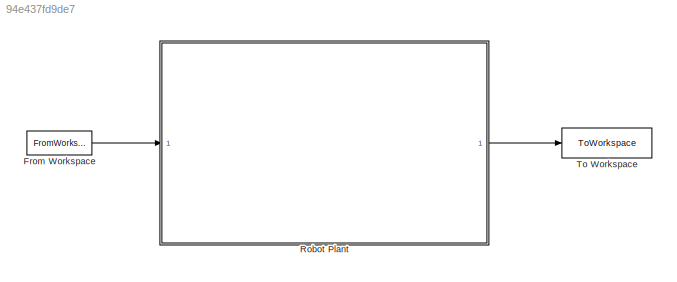
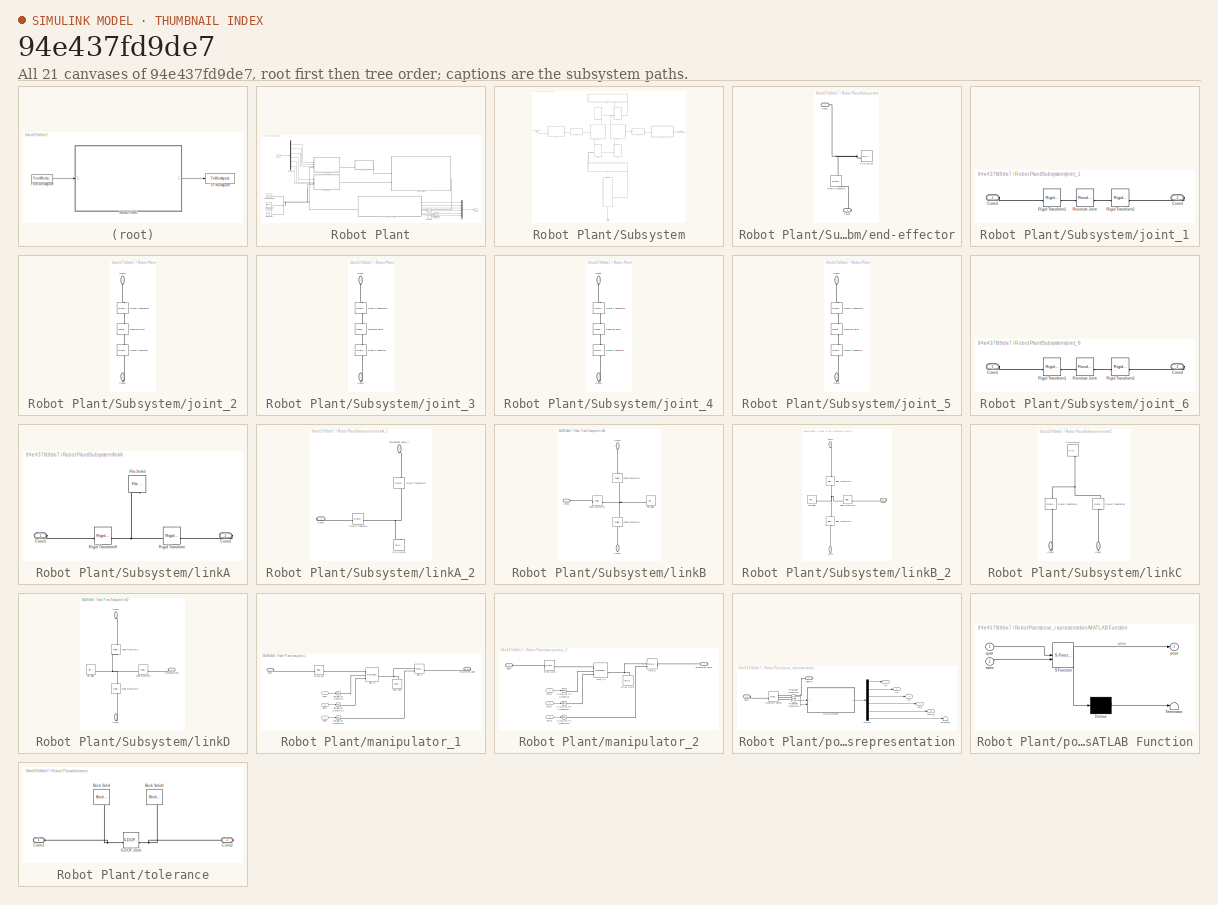
[diagram: thumbnail index - all 21 canvases of the model, root first then tree order]
MODEL slx_94e437fd9de7
KIND model
CONFIG AbsTol = 1e-4
CONFIG FixedStep = 1e-4
CONFIG SolverName = ode15s
CONFIG StopTime = 0.001
BLOCK [FromWorkspace] From Workspace
  VariableName = q_input
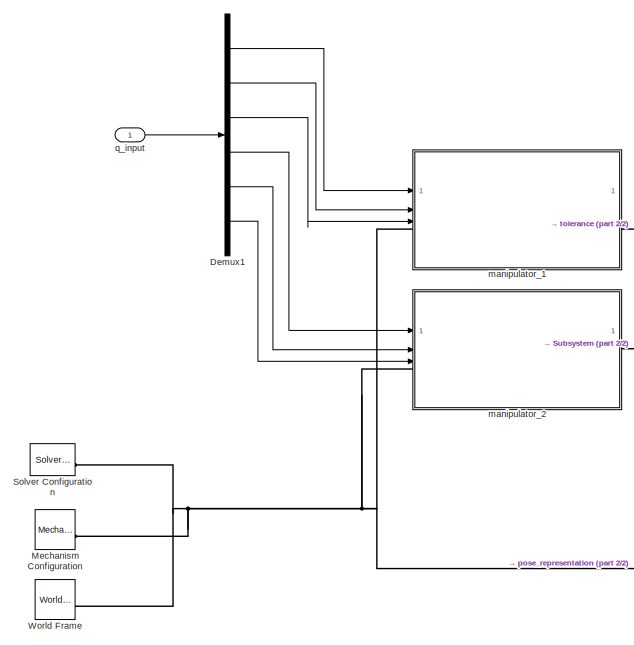
[diagram: Robot Plant - part 1/2, left side, full height]
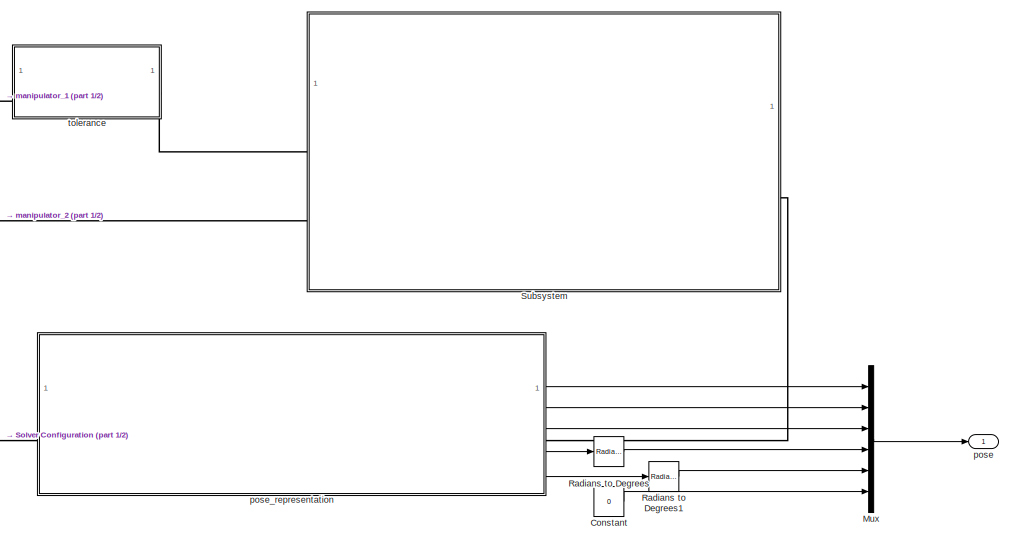
[diagram: Robot Plant - part 2/2, right side, full height]
BLOCK [SubSystem] Robot Plant
  TreatAsAtomicUnit = on
BLOCK [Constant] Robot Plant/Constant
  Value = 0
BLOCK [Demux] Robot Plant/Demux1
  Outputs = 6
BLOCK [Reference] Robot Plant/Mechanism Configuration  REF=sm_lib/Utilities/Mechanism
Configuration
  SourceBlock = sm_lib/Utilities/Mechanism\nConfiguration
  SourceType = Mechanism\nConfiguration
BLOCK [Mux] Robot Plant/Mux
  DisplayOption = bar
  Inputs = 6
BLOCK [Reference] Robot Plant/Radians to Degrees  REF=simulink_extras/Transformations/Radians
to Degrees
  SourceBlock = simulink_extras/Transformations/Radians\nto Degrees
  SourceType = RadiansToDegrees
BLOCK [Reference] Robot Plant/Radians to Degrees1  REF=simulink_extras/Transformations/Radians
to Degrees
  SourceBlock = simulink_extras/Transformations/Radians\nto Degrees
  SourceType = RadiansToDegrees
BLOCK [Reference] Robot Plant/Solver Configuration  REF=nesl_utility/Solver
Configuration
  SourceBlock = nesl_utility/Solver\nConfiguration
  SourceType = Solver\nConfiguration
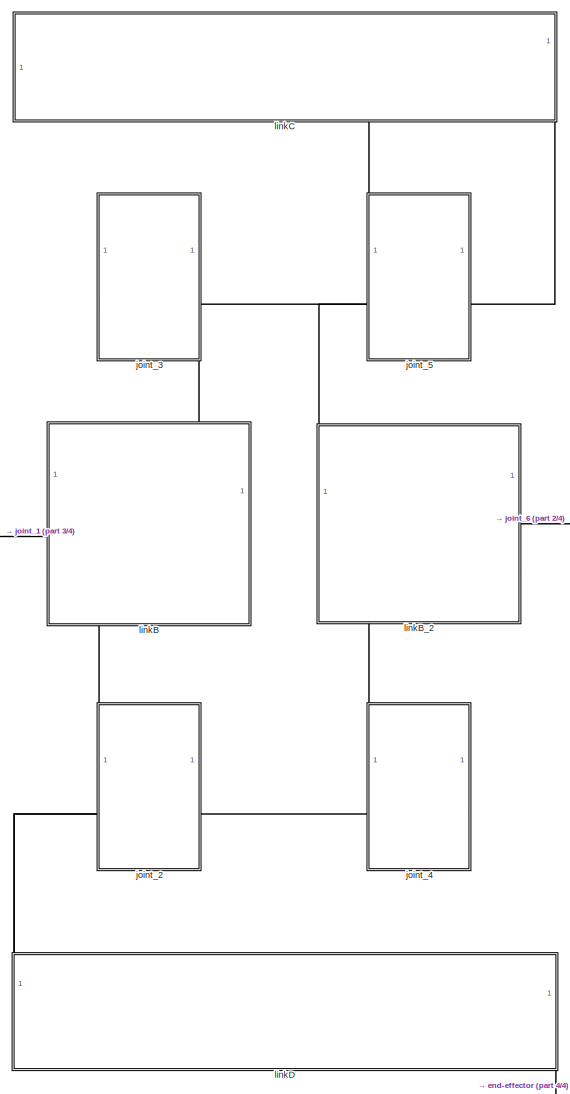
[diagram: Robot Plant/Subsystem - part 1/4, top center region]
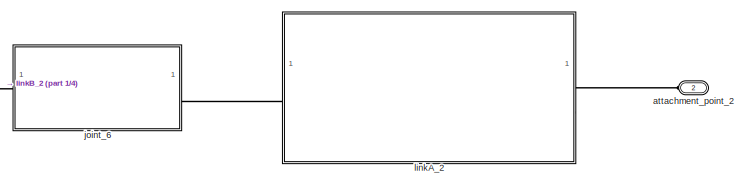
[diagram: Robot Plant/Subsystem - part 2/4, top right region]
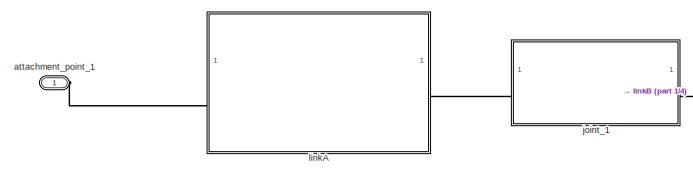
[diagram: Robot Plant/Subsystem - part 3/4, top left region]
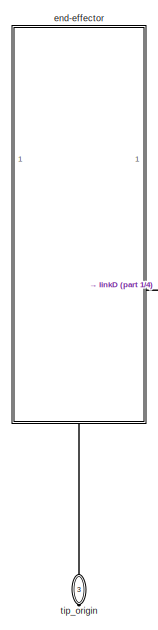
[diagram: Robot Plant/Subsystem - part 4/4, bottom center region]
BLOCK [SubSystem] Robot Plant/Subsystem
BLOCK [PMIOPort] Robot Plant/Subsystem/attachment_point_1
  Side = Left
BLOCK [PMIOPort] Robot Plant/Subsystem/attachment_point_2
  NameLocation = top
  Port = 2
  Side = Left
BLOCK [SubSystem] Robot Plant/Subsystem/end-effector
  PortSchema = {"entries":[{"content":{"sides":[{"content":{},"type":"ConnectorPlacement.EquallySpacedRectSide","uuid":"9de1889a-d8f6-4996-99c5-f2a028d35b44"},{"content":{"side":"RIGHT"},"type":"ConnectorPlacement.EquallySpacedRectSide","uuid":"8a8edfff-e1e7-440d-adc1-4cea806c8845"},{"content":{"connectorIds":["LConn1"],"side":"TOP"},"type":"ConnectorPlacement.EquallySpacedRectSide","uuid":"a66a7a7d-93f6-41f0-b4...<+354ch>
BLOCK [PMIOPort] Robot Plant/Subsystem/end-effector/Conn1
  Side = Left
BLOCK [PMIOPort] Robot Plant/Subsystem/end-effector/Conn2
  Port = 2
  Side = Right
BLOCK [Reference] Robot Plant/Subsystem/end-effector/File Solid2  REF=sm_lib/Body Elements/File Solid
  SourceBlock = sm_lib/Body Elements/File Solid
  SourceType = File Solid
BLOCK [Reference] Robot Plant/Subsystem/end-effector/Rigid Transform  REF=sm_lib/Frames and
Transforms/Rigid
Transform
  NameLocation = left
  SourceBlock = sm_lib/Frames and\nTransforms/Rigid\nTransform
  SourceType = Rigid\nTransform
BLOCK [SubSystem] Robot Plant/Subsystem/joint_1
BLOCK [PMIOPort] Robot Plant/Subsystem/joint_1/Conn1
  Side = Left
BLOCK [PMIOPort] Robot Plant/Subsystem/joint_1/Conn2
  Port = 2
  Side = Right
BLOCK [Reference] Robot Plant/Subsystem/joint_1/Revolute Joint  REF=sm_lib/Joints/Revolute Joint
  SourceBlock = sm_lib/Joints/Revolute Joint
  SourceType = Revolute Joint
BLOCK [Reference] Robot Plant/Subsystem/joint_1/Rigid Transform1  REF=sm_lib/Frames and
Transforms/Rigid
Transform
  SourceBlock = sm_lib/Frames and\nTransforms/Rigid\nTransform
  SourceType = Rigid\nTransform
BLOCK [Reference] Robot Plant/Subsystem/joint_1/Rigid Transform2  REF=sm_lib/Frames and
Transforms/Rigid
Transform
  SourceBlock = sm_lib/Frames and\nTransforms/Rigid\nTransform
  SourceType = Rigid\nTransform
BLOCK [SubSystem] Robot Plant/Subsystem/joint_2
  PortSchema = {"entries":[{"content":{"sides":[{"content":{},"type":"ConnectorPlacement.EquallySpacedRectSide","uuid":"7ac89617-0827-49a6-bc82-c9854bd87ba2"},{"content":{"side":"RIGHT"},"type":"ConnectorPlacement.EquallySpacedRectSide","uuid":"8abbba95-1fa4-4603-b9f3-69c7a5fa3e8e"},{"content":{"connectorIds":["LConn1"],"side":"TOP"},"type":"ConnectorPlacement.EquallySpacedRectSide","uuid":"f375a471-7789-4821-97...<+354ch>  <repeated x4 — deduplicated; at blocks: joint_2, joint_3, joint_4, joint_5>
BLOCK [PMIOPort] Robot Plant/Subsystem/joint_2/Conn1
  NameLocation = left
  Side = Left
BLOCK [PMIOPort] Robot Plant/Subsystem/joint_2/Conn2
  NameLocation = right
  Port = 2
  Side = Right
BLOCK [Reference] Robot Plant/Subsystem/joint_2/Revolute Joint  REF=sm_lib/Joints/Revolute Joint
  NameLocation = right
  SourceBlock = sm_lib/Joints/Revolute Joint
  SourceType = Revolute Joint
BLOCK [Reference] Robot Plant/Subsystem/joint_2/Rigid Transform  REF=sm_lib/Frames and
Transforms/Rigid
Transform
  NameLocation = right
  SourceBlock = sm_lib/Frames and\nTransforms/Rigid\nTransform
  SourceType = Rigid\nTransform
BLOCK [Reference] Robot Plant/Subsystem/joint_2/Rigid Transform1  REF=sm_lib/Frames and
Transforms/Rigid
Transform
  NameLocation = left
  SourceBlock = sm_lib/Frames and\nTransforms/Rigid\nTransform
  SourceType = Rigid\nTransform
BLOCK [SubSystem] Robot Plant/Subsystem/joint_3
BLOCK [PMIOPort] Robot Plant/Subsystem/joint_3/Conn1
  NameLocation = left
  Side = Left
BLOCK [PMIOPort] Robot Plant/Subsystem/joint_3/Conn2
  NameLocation = right
  Port = 2
  Side = Right
BLOCK [Reference] Robot Plant/Subsystem/joint_3/Revolute Joint  REF=sm_lib/Joints/Revolute Joint
  NameLocation = right
  SourceBlock = sm_lib/Joints/Revolute Joint
  SourceType = Revolute Joint
BLOCK [Reference] Robot Plant/Subsystem/joint_3/Rigid Transform  REF=sm_lib/Frames and
Transforms/Rigid
Transform
  NameLocation = right
  SourceBlock = sm_lib/Frames and\nTransforms/Rigid\nTransform
  SourceType = Rigid\nTransform
BLOCK [Reference] Robot Plant/Subsystem/joint_3/Rigid Transform1  REF=sm_lib/Frames and
Transforms/Rigid
Transform
  NameLocation = left
  SourceBlock = sm_lib/Frames and\nTransforms/Rigid\nTransform
  SourceType = Rigid\nTransform
BLOCK [SubSystem] Robot Plant/Subsystem/joint_4
BLOCK [PMIOPort] Robot Plant/Subsystem/joint_4/Conn1
  NameLocation = left
  Side = Left
BLOCK [PMIOPort] Robot Plant/Subsystem/joint_4/Conn2
  NameLocation = right
  Port = 2
  Side = Right
BLOCK [Reference] Robot Plant/Subsystem/joint_4/Revolute Joint  REF=sm_lib/Joints/Revolute Joint
  NameLocation = right
  SourceBlock = sm_lib/Joints/Revolute Joint
  SourceType = Revolute Joint
BLOCK [Reference] Robot Plant/Subsystem/joint_4/Rigid Transform  REF=sm_lib/Frames and
Transforms/Rigid
Transform
  NameLocation = right
  SourceBlock = sm_lib/Frames and\nTransforms/Rigid\nTransform
  SourceType = Rigid\nTransform
BLOCK [Reference] Robot Plant/Subsystem/joint_4/Rigid Transform1  REF=sm_lib/Frames and
Transforms/Rigid
Transform
  NameLocation = left
  SourceBlock = sm_lib/Frames and\nTransforms/Rigid\nTransform
  SourceType = Rigid\nTransform
BLOCK [SubSystem] Robot Plant/Subsystem/joint_5
BLOCK [PMIOPort] Robot Plant/Subsystem/joint_5/Conn1
  NameLocation = left
  Side = Left
BLOCK [PMIOPort] Robot Plant/Subsystem/joint_5/Conn2
  NameLocation = right
  Port = 2
  Side = Right
BLOCK [Reference] Robot Plant/Subsystem/joint_5/Revolute Joint  REF=sm_lib/Joints/Revolute Joint
  NameLocation = right
  SourceBlock = sm_lib/Joints/Revolute Joint
  SourceType = Revolute Joint
BLOCK [Reference] Robot Plant/Subsystem/joint_5/Rigid Transform  REF=sm_lib/Frames and
Transforms/Rigid
Transform
  NameLocation = right
  SourceBlock = sm_lib/Frames and\nTransforms/Rigid\nTransform
  SourceType = Rigid\nTransform
BLOCK [Reference] Robot Plant/Subsystem/joint_5/Rigid Transform1  REF=sm_lib/Frames and
Transforms/Rigid
Transform
  NameLocation = left
  SourceBlock = sm_lib/Frames and\nTransforms/Rigid\nTransform
  SourceType = Rigid\nTransform
BLOCK [SubSystem] Robot Plant/Subsystem/joint_6
BLOCK [PMIOPort] Robot Plant/Subsystem/joint_6/Conn1
  Side = Left
BLOCK [PMIOPort] Robot Plant/Subsystem/joint_6/Conn2
  Port = 2
  Side = Right
BLOCK [Reference] Robot Plant/Subsystem/joint_6/Revolute Joint  REF=sm_lib/Joints/Revolute Joint
  SourceBlock = sm_lib/Joints/Revolute Joint
  SourceType = Revolute Joint
BLOCK [Reference] Robot Plant/Subsystem/joint_6/Rigid Transform1  REF=sm_lib/Frames and
Transforms/Rigid
Transform
  SourceBlock = sm_lib/Frames and\nTransforms/Rigid\nTransform
  SourceType = Rigid\nTransform
BLOCK [Reference] Robot Plant/Subsystem/joint_6/Rigid Transform2  REF=sm_lib/Frames and
Transforms/Rigid
Transform
  SourceBlock = sm_lib/Frames and\nTransforms/Rigid\nTransform
  SourceType = Rigid\nTransform
BLOCK [SubSystem] Robot Plant/Subsystem/linkA
BLOCK [PMIOPort] Robot Plant/Subsystem/linkA/Conn1
  Side = Left
BLOCK [PMIOPort] Robot Plant/Subsystem/linkA/Conn2
  Port = 2
  Side = Right
BLOCK [Reference] Robot Plant/Subsystem/linkA/File Solid  REF=sm_lib/Body Elements/File Solid
  NameLocation = right
  SourceBlock = sm_lib/Body Elements/File Solid
  SourceType = File Solid
BLOCK [Reference] Robot Plant/Subsystem/linkA/Rigid Transform  REF=sm_lib/Frames and
Transforms/Rigid
Transform
  SourceBlock = sm_lib/Frames and\nTransforms/Rigid\nTransform
  SourceType = Rigid\nTransform
BLOCK [Reference] Robot Plant/Subsystem/linkA/Rigid Transform9  REF=sm_lib/Frames and
Transforms/Rigid
Transform
  SourceBlock = sm_lib/Frames and\nTransforms/Rigid\nTransform
  SourceType = Rigid\nTransform
BLOCK [SubSystem] Robot Plant/Subsystem/linkA_2
BLOCK [PMIOPort] Robot Plant/Subsystem/linkA_2/Conn2
  Port = 2
  Side = Right
BLOCK [Reference] Robot Plant/Subsystem/linkA_2/File Solid1  REF=sm_lib/Body Elements/File Solid
  NameLocation = left
  SourceBlock = sm_lib/Body Elements/File Solid
  SourceType = File Solid
BLOCK [Reference] Robot Plant/Subsystem/linkA_2/Rigid Transform  REF=sm_lib/Frames and
Transforms/Rigid
Transform
  NameLocation = top
  SourceBlock = sm_lib/Frames and\nTransforms/Rigid\nTransform
  SourceType = Rigid\nTransform
BLOCK [Reference] Robot Plant/Subsystem/linkA_2/Rigid Transform2  REF=sm_lib/Frames and
Transforms/Rigid
Transform
  NameLocation = left
  SourceBlock = sm_lib/Frames and\nTransforms/Rigid\nTransform
  SourceType = Rigid\nTransform
BLOCK [PMIOPort] Robot Plant/Subsystem/linkA_2/attachment_point_2
  NameLocation = left
  Side = Left
BLOCK [SubSystem] Robot Plant/Subsystem/linkB
  PortSchema = {"entries":[{"content":{"sides":[{"content":{"connectorIds":["LConn1"]},"type":"ConnectorPlacement.EquallySpacedRectSide","uuid":"ad560010-601c-4109-ad9b-c40875ad22ec"},{"content":{"side":"RIGHT"},"type":"ConnectorPlacement.EquallySpacedRectSide","uuid":"380dc67c-db39-4e97-b8ce-8039eefb717d"},{"content":{"connectorIds":["LConn2"],"side":"TOP"},"type":"ConnectorPlacement.EquallySpacedRectSide","uui...<+379ch>
BLOCK [PMIOPort] Robot Plant/Subsystem/linkB/Conn1
  NameLocation = right
  Port = 2
  Side = Left
BLOCK [PMIOPort] Robot Plant/Subsystem/linkB/Conn2
  Side = Left
BLOCK [PMIOPort] Robot Plant/Subsystem/linkB/Conn3
  NameLocation = left
  Port = 3
  Side = Right
BLOCK [Reference] Robot Plant/Subsystem/linkB/File Solid3  REF=sm_lib/Body Elements/File Solid
  SourceBlock = sm_lib/Body Elements/File Solid
  SourceType = File Solid
BLOCK [Reference] Robot Plant/Subsystem/linkB/Rigid Transform1  REF=sm_lib/Frames and
Transforms/Rigid
Transform
  SourceBlock = sm_lib/Frames and\nTransforms/Rigid\nTransform
  SourceType = Rigid\nTransform
BLOCK [Reference] Robot Plant/Subsystem/linkB/Rigid Transform2  REF=sm_lib/Frames and
Transforms/Rigid
Transform
  NameLocation = left
  SourceBlock = sm_lib/Frames and\nTransforms/Rigid\nTransform
  SourceType = Rigid\nTransform
BLOCK [Reference] Robot Plant/Subsystem/linkB/Rigid Transform3  REF=sm_lib/Frames and
Transforms/Rigid
Transform
  NameLocation = right
  SourceBlock = sm_lib/Frames and\nTransforms/Rigid\nTransform
  SourceType = Rigid\nTransform
BLOCK [SubSystem] Robot Plant/Subsystem/linkB_2
  PortSchema = {"entries":[{"content":{"sides":[{"content":{},"type":"ConnectorPlacement.EquallySpacedRectSide","uuid":"7330d8d3-43dc-4fcf-bec4-ef645772f38d"},{"content":{"connectorIds":["RConn1"],"side":"RIGHT"},"type":"ConnectorPlacement.EquallySpacedRectSide","uuid":"b5105267-17e8-4fe9-8d2f-f82aac91dbeb"},{"content":{"connectorIds":["LConn1"],"side":"TOP"},"type":"ConnectorPlacement.EquallySpacedRectSide","uu...<+380ch>
BLOCK [PMIOPort] Robot Plant/Subsystem/linkB_2/Conn1
  NameLocation = right
  Side = Left
BLOCK [PMIOPort] Robot Plant/Subsystem/linkB_2/Conn2
  Port = 2
  Side = Right
BLOCK [PMIOPort] Robot Plant/Subsystem/linkB_2/Conn3
  NameLocation = right
  Port = 3
  Side = Right
BLOCK [Reference] Robot Plant/Subsystem/linkB_2/File Solid5  REF=sm_lib/Body Elements/File Solid
  SourceBlock = sm_lib/Body Elements/File Solid
  SourceType = File Solid
BLOCK [Reference] Robot Plant/Subsystem/linkB_2/Rigid Transform1  REF=sm_lib/Frames and
Transforms/Rigid
Transform
  SourceBlock = sm_lib/Frames and\nTransforms/Rigid\nTransform
  SourceType = Rigid\nTransform
BLOCK [Reference] Robot Plant/Subsystem/linkB_2/Rigid Transform3  REF=sm_lib/Frames and
Transforms/Rigid
Transform
  NameLocation = left
  SourceBlock = sm_lib/Frames and\nTransforms/Rigid\nTransform
  SourceType = Rigid\nTransform
BLOCK [Reference] Robot Plant/Subsystem/linkB_2/Rigid Transform6  REF=sm_lib/Frames and
Transforms/Rigid
Transform
  NameLocation = right
  SourceBlock = sm_lib/Frames and\nTransforms/Rigid\nTransform
  SourceType = Rigid\nTransform
BLOCK [SubSystem] Robot Plant/Subsystem/linkC
  PortSchema = {"entries":[{"content":{"sides":[{"content":{},"type":"ConnectorPlacement.EquallySpacedRectSide","uuid":"3cd58c2b-c1e3-4fb3-a9dc-0406e59c1568"},{"content":{"side":"RIGHT"},"type":"ConnectorPlacement.EquallySpacedRectSide","uuid":"fc2602cc-2a91-4563-8ad4-e1fc413fcd0e"},{"content":{"side":"TOP"},"type":"ConnectorPlacement.EquallySpacedRectSide","uuid":"e1f0a915-81c5-4962-997e-076b0eee3b1a"},{"conten...<+337ch>
BLOCK [PMIOPort] Robot Plant/Subsystem/linkC/Conn1
  NameLocation = left
  Side = Right
BLOCK [PMIOPort] Robot Plant/Subsystem/linkC/Conn2
  NameLocation = left
  Port = 2
  Side = Right
BLOCK [Reference] Robot Plant/Subsystem/linkC/File Solid4  REF=sm_lib/Body Elements/File Solid
  NameLocation = right
  SourceBlock = sm_lib/Body Elements/File Solid
  SourceType = File Solid
BLOCK [Reference] Robot Plant/Subsystem/linkC/Rigid Transform4  REF=sm_lib/Frames and
Transforms/Rigid
Transform
  NameLocation = right
  SourceBlock = sm_lib/Frames and\nTransforms/Rigid\nTransform
  SourceType = Rigid\nTransform
BLOCK [Reference] Robot Plant/Subsystem/linkC/Rigid Transform5  REF=sm_lib/Frames and
Transforms/Rigid
Transform
  NameLocation = left
  SourceBlock = sm_lib/Frames and\nTransforms/Rigid\nTransform
  SourceType = Rigid\nTransform
BLOCK [SubSystem] Robot Plant/Subsystem/linkD
  PortSchema = {"entries":[{"content":{"sides":[{"content":{},"type":"ConnectorPlacement.EquallySpacedRectSide","uuid":"3cd58c2b-c1e3-4fb3-a9dc-0406e59c1568"},{"content":{"side":"RIGHT"},"type":"ConnectorPlacement.EquallySpacedRectSide","uuid":"fc2602cc-2a91-4563-8ad4-e1fc413fcd0e"},{"content":{"connectorIds":["LConn1","LConn2"],"side":"TOP"},"type":"ConnectorPlacement.EquallySpacedRectSide","uuid":"e1f0a915-81c...<+363ch>
BLOCK [PMIOPort] Robot Plant/Subsystem/linkD/Conn1
  NameLocation = right
  Side = Left
BLOCK [PMIOPort] Robot Plant/Subsystem/linkD/Conn2
  NameLocation = left
  Port = 3
  Side = Right
BLOCK [PMIOPort] Robot Plant/Subsystem/linkD/Connection Port
  Port = 2
  Side = Left
BLOCK [Reference] Robot Plant/Subsystem/linkD/File Solid6  REF=sm_lib/Body Elements/File Solid
  SourceBlock = sm_lib/Body Elements/File Solid
  SourceType = File Solid
BLOCK [Reference] Robot Plant/Subsystem/linkD/Rigid Transform  REF=sm_lib/Frames and
Transforms/Rigid
Transform
  SourceBlock = sm_lib/Frames and\nTransforms/Rigid\nTransform
  SourceType = Rigid\nTransform
BLOCK [Reference] Robot Plant/Subsystem/linkD/Rigid Transform7  REF=sm_lib/Frames and
Transforms/Rigid
Transform
  NameLocation = left
  SourceBlock = sm_lib/Frames and\nTransforms/Rigid\nTransform
  SourceType = Rigid\nTransform
BLOCK [Reference] Robot Plant/Subsystem/linkD/Rigid Transform8  REF=sm_lib/Frames and
Transforms/Rigid
Transform
  NameLocation = left
  SourceBlock = sm_lib/Frames and\nTransforms/Rigid\nTransform
  SourceType = Rigid\nTransform
BLOCK [PMIOPort] Robot Plant/Subsystem/tip_origin
  NameLocation = right
  Port = 3
  Side = Right
BLOCK [Reference] Robot Plant/World Frame  REF=sm_lib/Frames and
Transforms/World Frame
  SourceBlock = sm_lib/Frames and\nTransforms/World Frame
  SourceType = World Frame
BLOCK [SubSystem] Robot Plant/manipulator_1
BLOCK [Reference] Robot Plant/manipulator_1/Brick Solid  REF=sm_lib/Body Elements/Brick Solid
  NameLocation = right
  SourceBlock = sm_lib/Body Elements/Brick Solid
  SourceType = Brick Solid
BLOCK [Reference] Robot Plant/manipulator_1/Simulink-PS Converter  REF=nesl_utility/Simulink-PS
Converter
  SourceBlock = nesl_utility/Simulink-PS\nConverter
  SourceType = Simulink-PS\nConverter
BLOCK [Reference] Robot Plant/manipulator_1/Simulink-PS Converter1  REF=nesl_utility/Simulink-PS
Converter
  SourceBlock = nesl_utility/Simulink-PS\nConverter
  SourceType = Simulink-PS\nConverter
BLOCK [Reference] Robot Plant/manipulator_1/Simulink-PS Converter2  REF=nesl_utility/Simulink-PS
Converter
  SourceBlock = nesl_utility/Simulink-PS\nConverter
  SourceType = Simulink-PS\nConverter
BLOCK [PMIOPort] Robot Plant/manipulator_1/attachment_point
  Port = 2
  Side = Right
BLOCK [Inport] Robot Plant/manipulator_1/axisX
BLOCK [Inport] Robot Plant/manipulator_1/axisY
  Port = 2
BLOCK [Inport] Robot Plant/manipulator_1/axisZ
  Port = 3
BLOCK [PMIOPort] Robot Plant/manipulator_1/base
  Side = Left
BLOCK [Reference] Robot Plant/manipulator_1/joint_XY  REF=sm_lib/Joints/Rectangular
Joint
  SourceBlock = sm_lib/Joints/Rectangular\nJoint
  SourceType = Rectangular\nJoint
BLOCK [Reference] Robot Plant/manipulator_1/joint_Z  REF=sm_lib/Joints/Prismatic
Joint
  SourceBlock = sm_lib/Joints/Prismatic\nJoint
  SourceType = Prismatic\nJoint
BLOCK [Reference] Robot Plant/manipulator_1/offset_left  REF=sm_lib/Frames and
Transforms/Rigid
Transform
  SourceBlock = sm_lib/Frames and\nTransforms/Rigid\nTransform
  SourceType = Rigid\nTransform
BLOCK [SubSystem] Robot Plant/manipulator_2
BLOCK [Reference] Robot Plant/manipulator_2/Brick Solid  REF=sm_lib/Body Elements/Brick Solid
  NameLocation = right
  SourceBlock = sm_lib/Body Elements/Brick Solid
  SourceType = Brick Solid
BLOCK [Reference] Robot Plant/manipulator_2/Simulink-PS Converter  REF=nesl_utility/Simulink-PS
Converter
  SourceBlock = nesl_utility/Simulink-PS\nConverter
  SourceType = Simulink-PS\nConverter
BLOCK [Reference] Robot Plant/manipulator_2/Simulink-PS Converter1  REF=nesl_utility/Simulink-PS
Converter
  SourceBlock = nesl_utility/Simulink-PS\nConverter
  SourceType = Simulink-PS\nConverter
BLOCK [Reference] Robot Plant/manipulator_2/Simulink-PS Converter2  REF=nesl_utility/Simulink-PS
Converter
  SourceBlock = nesl_utility/Simulink-PS\nConverter
  SourceType = Simulink-PS\nConverter
BLOCK [PMIOPort] Robot Plant/manipulator_2/attachment_point
  Port = 2
  Side = Right
BLOCK [Inport] Robot Plant/manipulator_2/axisX
BLOCK [Inport] Robot Plant/manipulator_2/axisY
  Port = 2
BLOCK [Inport] Robot Plant/manipulator_2/axisZ
  Port = 3
BLOCK [PMIOPort] Robot Plant/manipulator_2/base
  Side = Left
BLOCK [Reference] Robot Plant/manipulator_2/joint_XY  REF=sm_lib/Joints/Rectangular
Joint
  SourceBlock = sm_lib/Joints/Rectangular\nJoint
  SourceType = Rectangular\nJoint
BLOCK [Reference] Robot Plant/manipulator_2/joint_Z  REF=sm_lib/Joints/Prismatic
Joint
  SourceBlock = sm_lib/Joints/Prismatic\nJoint
  SourceType = Prismatic\nJoint
BLOCK [Reference] Robot Plant/manipulator_2/offset_right  REF=sm_lib/Frames and
Transforms/Rigid
Transform
  SourceBlock = sm_lib/Frames and\nTransforms/Rigid\nTransform
  SourceType = Rigid\nTransform
BLOCK [Outport] Robot Plant/pose
BLOCK [SubSystem] Robot Plant/pose_representation
  PortSchema = {"entries":[{"content":{"sides":[{"content":{"connectorIds":["LConn1"]},"type":"ConnectorPlacement.EquallySpacedRectSide","uuid":"b0801776-52a5-4c0f-9a15-527cd3df0ee5"},{"content":{"connectorIds":["RConn1","Out1","Out2","Out3","Out4","Out5"],"side":"RIGHT"},"type":"ConnectorPlacement.EquallySpacedRectSide","uuid":"a235b580-b391-41ee-9b47-fb54e754fb4f"},{"content":{"side":"TOP"},"type":"ConnectorPl...<+262ch>
BLOCK [Demux] Robot Plant/pose_representation/Demux
  Outputs = 6
BLOCK [SubSystem] Robot Plant/pose_representation/MATLAB Function
  ErrorFcn = Stateflow.Translate.translate
  PermitHierarchicalResolution = ExplicitOnly
  SFBlockType = MATLAB Function
  TreatAsAtomicUnit = on
BLOCK [Demux] Robot Plant/pose_representation/MATLAB Function/ Demux 
  Outputs = 1
BLOCK [S-Function] Robot Plant/pose_representation/MATLAB Function/ SFunction 
  EnableBusSupport = off
  FunctionName = sf_sfun
  PortCounts = [2 2]
  SFcnIsStateOwnerBlock = off
  SFunctionDeploymentMode = off
  Tag = Stateflow S-Function 2
BLOCK [Terminator] Robot Plant/pose_representation/MATLAB Function/ Terminator 
BLOCK [Outport] Robot Plant/pose_representation/MATLAB Function/pose
BLOCK [Inport] Robot Plant/pose_representation/MATLAB Function/quat
BLOCK [Inport] Robot Plant/pose_representation/MATLAB Function/trans
  Port = 2
BLOCK [Reference] Robot Plant/pose_representation/PS-Simulink Converter4  REF=nesl_utility/PS-Simulink
Converter
  SourceBlock = nesl_utility/PS-Simulink\nConverter
  SourceType = PS-Simulink\nConverter
BLOCK [Reference] Robot Plant/pose_representation/PS-Simulink Converter5  REF=nesl_utility/PS-Simulink
Converter
  SourceBlock = nesl_utility/PS-Simulink\nConverter
  SourceType = PS-Simulink\nConverter
BLOCK [Terminator] Robot Plant/pose_representation/Terminator
BLOCK [Reference] Robot Plant/pose_representation/Transform Sensor  REF=sm_lib/Frames and
Transforms/Transform
Sensor
  SourceBlock = sm_lib/Frames and\nTransforms/Transform\nSensor
  SourceType = Transform\nSensor
BLOCK [Outport] Robot Plant/pose_representation/X_E
BLOCK [Outport] Robot Plant/pose_representation/Y_E
  Port = 2
BLOCK [Outport] Robot Plant/pose_representation/Z_E
  Port = 3
BLOCK [PMIOPort] Robot Plant/pose_representation/base
  Side = Left
BLOCK [PMIOPort] Robot Plant/pose_representation/follower
  Port = 2
  Side = Right
BLOCK [Outport] Robot Plant/pose_representation/phi_E
  Port = 4
BLOCK [Outport] Robot Plant/pose_representation/theta_E
  Port = 5
BLOCK [Inport] Robot Plant/q_input
BLOCK [SubSystem] Robot Plant/tolerance
BLOCK [Reference] Robot Plant/tolerance/6-DOF Joint  REF=sm_lib/Joints/6-DOF Joint
  SourceBlock = sm_lib/Joints/6-DOF Joint
  SourceType = 6-DOF Joint
BLOCK [Reference] Robot Plant/tolerance/Brick Solid  REF=sm_lib/Body Elements/Brick Solid
  NameLocation = left
  SourceBlock = sm_lib/Body Elements/Brick Solid
  SourceType = Brick Solid
BLOCK [Reference] Robot Plant/tolerance/Brick Solid1  REF=sm_lib/Body Elements/Brick Solid
  NameLocation = left
  SourceBlock = sm_lib/Body Elements/Brick Solid
  SourceType = Brick Solid
BLOCK [PMIOPort] Robot Plant/tolerance/Conn1
  Side = Left
BLOCK [PMIOPort] Robot Plant/tolerance/Conn2
  Port = 2
  Side = Right
BLOCK [ToWorkspace] To Workspace
  FixptAsFi = on
  MaxDataPoints = inf
  SampleTime = -1
  SaveFormat = Timeseries
  VariableName = pose
LINE From Workspace:1 -> Robot Plant:1
LINE Robot Plant/Constant:1 -> Robot Plant/Mux:6
LINE Robot Plant/Demux1:1 -> Robot Plant/manipulator_1:1
LINE Robot Plant/Demux1:2 -> Robot Plant/manipulator_1:2
LINE Robot Plant/Demux1:3 -> Robot Plant/manipulator_1:3
LINE Robot Plant/Demux1:4 -> Robot Plant/manipulator_2:1
LINE Robot Plant/Demux1:5 -> Robot Plant/manipulator_2:2
LINE Robot Plant/Demux1:6 -> Robot Plant/manipulator_2:3
LINE Robot Plant/Mux:1 -> Robot Plant/pose:1
LINE Robot Plant/Radians to Degrees1:1 -> Robot Plant/Mux:5
LINE Robot Plant/Radians to Degrees:1 -> Robot Plant/Mux:4
LINE Robot Plant/manipulator_1/axisX:1 -> Robot Plant/manipulator_1/Simulink-PS Converter:1
LINE Robot Plant/manipulator_1/axisY:1 -> Robot Plant/manipulator_1/Simulink-PS Converter1:1
LINE Robot Plant/manipulator_1/axisZ:1 -> Robot Plant/manipulator_1/Simulink-PS Converter2:1
LINE Robot Plant/manipulator_2/axisX:1 -> Robot Plant/manipulator_2/Simulink-PS Converter:1
LINE Robot Plant/manipulator_2/axisY:1 -> Robot Plant/manipulator_2/Simulink-PS Converter1:1
LINE Robot Plant/manipulator_2/axisZ:1 -> Robot Plant/manipulator_2/Simulink-PS Converter2:1
LINE Robot Plant/pose_representation/Demux:1 -> Robot Plant/pose_representation/X_E:1
LINE Robot Plant/pose_representation/Demux:2 -> Robot Plant/pose_representation/Y_E:1
LINE Robot Plant/pose_representation/Demux:3 -> Robot Plant/pose_representation/Z_E:1
LINE Robot Plant/pose_representation/Demux:4 -> Robot Plant/pose_representation/phi_E:1
LINE Robot Plant/pose_representation/Demux:5 -> Robot Plant/pose_representation/theta_E:1
LINE Robot Plant/pose_representation/Demux:6 -> Robot Plant/pose_representation/Terminator:1
LINE Robot Plant/pose_representation/MATLAB Function:1 -> Robot Plant/pose_representation/Demux:1
LINE Robot Plant/pose_representation/PS-Simulink Converter4:1 -> Robot Plant/pose_representation/MATLAB Function:1
LINE Robot Plant/pose_representation/PS-Simulink Converter5:1 -> Robot Plant/pose_representation/MATLAB Function:2
LINE Robot Plant/pose_representation:1 -> Robot Plant/Mux:1
LINE Robot Plant/pose_representation:2 -> Robot Plant/Mux:2
LINE Robot Plant/pose_representation:3 -> Robot Plant/Mux:3
LINE Robot Plant/pose_representation:4 -> Robot Plant/Radians to Degrees:1
LINE Robot Plant/pose_representation:5 -> Robot Plant/Radians to Degrees1:1
LINE Robot Plant/q_input:1 -> Robot Plant/Demux1:1
LINE Robot Plant:1 -> To Workspace:1
PNET net1: Robot Plant/Mechanism Configuration:RConn1 -- Robot Plant/Solver Configuration:RConn1 -- Robot Plant/World Frame:RConn1 -- Robot Plant/manipulator_1:LConn1 -- Robot Plant/manipulator_2:LConn1 -- Robot Plant/pose_representation:LConn1
PLINE Robot Plant/Subsystem/attachment_point_1:RConn1 -- Robot Plant/Subsystem/linkA:LConn1
PLINE Robot Plant/Subsystem/attachment_point_2:RConn1 -- Robot Plant/Subsystem/linkA_2:LConn1
PNET net2: Robot Plant/Subsystem/end-effector/Conn1:RConn1 -- Robot Plant/Subsystem/end-effector/File Solid2:LConn1 -- Robot Plant/Subsystem/end-effector/Rigid Transform:LConn1
PLINE Robot Plant/Subsystem/end-effector/Conn2:RConn1 -- Robot Plant/Subsystem/end-effector/Rigid Transform:RConn1
PLINE Robot Plant/Subsystem/end-effector:LConn1 -- Robot Plant/Subsystem/linkD:RConn1
PLINE Robot Plant/Subsystem/end-effector:RConn1 -- Robot Plant/Subsystem/tip_origin:RConn1
PLINE Robot Plant/Subsystem/joint_1/Conn1:RConn1 -- Robot Plant/Subsystem/joint_1/Rigid Transform1:LConn1
PLINE Robot Plant/Subsystem/joint_1/Conn2:RConn1 -- Robot Plant/Subsystem/joint_1/Rigid Transform2:LConn1
PLINE Robot Plant/Subsystem/joint_1/Revolute Joint:LConn1 -- Robot Plant/Subsystem/joint_1/Rigid Transform1:RConn1
PLINE Robot Plant/Subsystem/joint_1/Revolute Joint:RConn1 -- Robot Plant/Subsystem/joint_1/Rigid Transform2:RConn1
PLINE Robot Plant/Subsystem/joint_1:LConn1 -- Robot Plant/Subsystem/linkA:RConn1
PLINE Robot Plant/Subsystem/joint_1:RConn1 -- Robot Plant/Subsystem/linkB:LConn1
PLINE Robot Plant/Subsystem/joint_2/Conn1:RConn1 -- Robot Plant/Subsystem/joint_2/Rigid Transform1:LConn1
PLINE Robot Plant/Subsystem/joint_2/Conn2:RConn1 -- Robot Plant/Subsystem/joint_2/Rigid Transform:LConn1
PLINE Robot Plant/Subsystem/joint_2/Revolute Joint:LConn1 -- Robot Plant/Subsystem/joint_2/Rigid Transform:RConn1
PLINE Robot Plant/Subsystem/joint_2/Revolute Joint:RConn1 -- Robot Plant/Subsystem/joint_2/Rigid Transform1:RConn1
PLINE Robot Plant/Subsystem/joint_2:LConn1 -- Robot Plant/Subsystem/linkB:RConn1
PLINE Robot Plant/Subsystem/joint_2:RConn1 -- Robot Plant/Subsystem/linkD:LConn1
PLINE Robot Plant/Subsystem/joint_3/Conn1:RConn1 -- Robot Plant/Subsystem/joint_3/Rigid Transform1:LConn1
PLINE Robot Plant/Subsystem/joint_3/Conn2:RConn1 -- Robot Plant/Subsystem/joint_3/Rigid Transform:LConn1
PLINE Robot Plant/Subsystem/joint_3/Revolute Joint:LConn1 -- Robot Plant/Subsystem/joint_3/Rigid Transform:RConn1
PLINE Robot Plant/Subsystem/joint_3/Revolute Joint:RConn1 -- Robot Plant/Subsystem/joint_3/Rigid Transform1:RConn1
PLINE Robot Plant/Subsystem/joint_3:LConn1 -- Robot Plant/Subsystem/linkC:RConn1
PLINE Robot Plant/Subsystem/joint_3:RConn1 -- Robot Plant/Subsystem/linkB:LConn2
PLINE Robot Plant/Subsystem/joint_4/Conn1:RConn1 -- Robot Plant/Subsystem/joint_4/Rigid Transform1:LConn1
PLINE Robot Plant/Subsystem/joint_4/Conn2:RConn1 -- Robot Plant/Subsystem/joint_4/Rigid Transform:LConn1
PLINE Robot Plant/Subsystem/joint_4/Revolute Joint:LConn1 -- Robot Plant/Subsystem/joint_4/Rigid Transform:RConn1
PLINE Robot Plant/Subsystem/joint_4/Revolute Joint:RConn1 -- Robot Plant/Subsystem/joint_4/Rigid Transform1:RConn1
PLINE Robot Plant/Subsystem/joint_4:LConn1 -- Robot Plant/Subsystem/linkB_2:RConn2
PLINE Robot Plant/Subsystem/joint_4:RConn1 -- Robot Plant/Subsystem/linkD:LConn2
PLINE Robot Plant/Subsystem/joint_5/Conn1:RConn1 -- Robot Plant/Subsystem/joint_5/Rigid Transform1:LConn1
PLINE Robot Plant/Subsystem/joint_5/Conn2:RConn1 -- Robot Plant/Subsystem/joint_5/Rigid Transform:LConn1
PLINE Robot Plant/Subsystem/joint_5/Revolute Joint:LConn1 -- Robot Plant/Subsystem/joint_5/Rigid Transform:RConn1
PLINE Robot Plant/Subsystem/joint_5/Revolute Joint:RConn1 -- Robot Plant/Subsystem/joint_5/Rigid Transform1:RConn1
PLINE Robot Plant/Subsystem/joint_5:LConn1 -- Robot Plant/Subsystem/linkC:RConn2
PLINE Robot Plant/Subsystem/joint_5:RConn1 -- Robot Plant/Subsystem/linkB_2:LConn1
PLINE Robot Plant/Subsystem/joint_6/Conn1:RConn1 -- Robot Plant/Subsystem/joint_6/Rigid Transform1:LConn1
PLINE Robot Plant/Subsystem/joint_6/Conn2:RConn1 -- Robot Plant/Subsystem/joint_6/Rigid Transform2:LConn1
PLINE Robot Plant/Subsystem/joint_6/Revolute Joint:LConn1 -- Robot Plant/Subsystem/joint_6/Rigid Transform1:RConn1
PLINE Robot Plant/Subsystem/joint_6/Revolute Joint:RConn1 -- Robot Plant/Subsystem/joint_6/Rigid Transform2:RConn1
PLINE Robot Plant/Subsystem/joint_6:LConn1 -- Robot Plant/Subsystem/linkB_2:RConn1
PLINE Robot Plant/Subsystem/joint_6:RConn1 -- Robot Plant/Subsystem/linkA_2:RConn1
PLINE Robot Plant/Subsystem/linkA/Conn1:RConn1 -- Robot Plant/Subsystem/linkA/Rigid Transform9:RConn1
PLINE Robot Plant/Subsystem/linkA/Conn2:RConn1 -- Robot Plant/Subsystem/linkA/Rigid Transform:RConn1
PNET net3: Robot Plant/Subsystem/linkA/File Solid:LConn1 -- Robot Plant/Subsystem/linkA/Rigid Transform9:LConn1 -- Robot Plant/Subsystem/linkA/Rigid Transform:LConn1
PLINE Robot Plant/Subsystem/linkA_2/Conn2:RConn1 -- Robot Plant/Subsystem/linkA_2/Rigid Transform:RConn1
PNET net4: Robot Plant/Subsystem/linkA_2/File Solid1:LConn1 -- Robot Plant/Subsystem/linkA_2/Rigid Transform2:LConn1 -- Robot Plant/Subsystem/linkA_2/Rigid Transform:LConn1
PLINE Robot Plant/Subsystem/linkA_2/Rigid Transform2:RConn1 -- Robot Plant/Subsystem/linkA_2/attachment_point_2:RConn1
PLINE Robot Plant/Subsystem/linkB/Conn1:RConn1 -- Robot Plant/Subsystem/linkB/Rigid Transform3:RConn1
PLINE Robot Plant/Subsystem/linkB/Conn2:RConn1 -- Robot Plant/Subsystem/linkB/Rigid Transform1:RConn1
PLINE Robot Plant/Subsystem/linkB/Conn3:RConn1 -- Robot Plant/Subsystem/linkB/Rigid Transform2:RConn1
PNET net5: Robot Plant/Subsystem/linkB/File Solid3:LConn1 -- Robot Plant/Subsystem/linkB/Rigid Transform1:LConn1 -- Robot Plant/Subsystem/linkB/Rigid Transform2:LConn1 -- Robot Plant/Subsystem/linkB/Rigid Transform3:LConn1
PLINE Robot Plant/Subsystem/linkB_2/Conn1:RConn1 -- Robot Plant/Subsystem/linkB_2/Rigid Transform6:RConn1
PLINE Robot Plant/Subsystem/linkB_2/Conn2:RConn1 -- Robot Plant/Subsystem/linkB_2/Rigid Transform1:RConn1
PLINE Robot Plant/Subsystem/linkB_2/Conn3:RConn1 -- Robot Plant/Subsystem/linkB_2/Rigid Transform3:RConn1
PNET net6: Robot Plant/Subsystem/linkB_2/File Solid5:LConn1 -- Robot Plant/Subsystem/linkB_2/Rigid Transform1:LConn1 -- Robot Plant/Subsystem/linkB_2/Rigid Transform3:LConn1 -- Robot Plant/Subsystem/linkB_2/Rigid Transform6:LConn1
PLINE Robot Plant/Subsystem/linkC/Conn1:RConn1 -- Robot Plant/Subsystem/linkC/Rigid Transform4:RConn1
PLINE Robot Plant/Subsystem/linkC/Conn2:RConn1 -- Robot Plant/Subsystem/linkC/Rigid Transform5:RConn1
PNET net7: Robot Plant/Subsystem/linkC/File Solid4:LConn1 -- Robot Plant/Subsystem/linkC/Rigid Transform4:LConn1 -- Robot Plant/Subsystem/linkC/Rigid Transform5:LConn1
PLINE Robot Plant/Subsystem/linkD/Conn1:RConn1 -- Robot Plant/Subsystem/linkD/Rigid Transform7:RConn1
PLINE Robot Plant/Subsystem/linkD/Conn2:RConn1 -- Robot Plant/Subsystem/linkD/Rigid Transform8:RConn1
PLINE Robot Plant/Subsystem/linkD/Connection Port:RConn1 -- Robot Plant/Subsystem/linkD/Rigid Transform:RConn1
PNET net8: Robot Plant/Subsystem/linkD/File Solid6:LConn1 -- Robot Plant/Subsystem/linkD/Rigid Transform7:LConn1 -- Robot Plant/Subsystem/linkD/Rigid Transform8:LConn1 -- Robot Plant/Subsystem/linkD/Rigid Transform:LConn1
PLINE Robot Plant/Subsystem:LConn1 -- Robot Plant/tolerance:RConn1
PLINE Robot Plant/Subsystem:LConn2 -- Robot Plant/manipulator_2:RConn1
PLINE Robot Plant/Subsystem:RConn1 -- Robot Plant/pose_representation:RConn1
PNET net9: Robot Plant/manipulator_1/Brick Solid:RConn1 -- Robot Plant/manipulator_1/joint_XY:RConn1 -- Robot Plant/manipulator_1/joint_Z:LConn1
PLINE Robot Plant/manipulator_1/Simulink-PS Converter1:RConn1 -- Robot Plant/manipulator_1/joint_XY:LConn3
PLINE Robot Plant/manipulator_1/Simulink-PS Converter2:RConn1 -- Robot Plant/manipulator_1/joint_Z:LConn2
PLINE Robot Plant/manipulator_1/Simulink-PS Converter:RConn1 -- Robot Plant/manipulator_1/joint_XY:LConn2
PLINE Robot Plant/manipulator_1/attachment_point:RConn1 -- Robot Plant/manipulator_1/joint_Z:RConn1
PLINE Robot Plant/manipulator_1/base:RConn1 -- Robot Plant/manipulator_1/offset_left:LConn1
PLINE Robot Plant/manipulator_1/joint_XY:LConn1 -- Robot Plant/manipulator_1/offset_left:RConn1
PLINE Robot Plant/manipulator_1:RConn1 -- Robot Plant/tolerance:LConn1
PNET net10: Robot Plant/manipulator_2/Brick Solid:RConn1 -- Robot Plant/manipulator_2/joint_XY:RConn1 -- Robot Plant/manipulator_2/joint_Z:LConn1
PLINE Robot Plant/manipulator_2/Simulink-PS Converter1:RConn1 -- Robot Plant/manipulator_2/joint_XY:LConn3
PLINE Robot Plant/manipulator_2/Simulink-PS Converter2:RConn1 -- Robot Plant/manipulator_2/joint_Z:LConn2
PLINE Robot Plant/manipulator_2/Simulink-PS Converter:RConn1 -- Robot Plant/manipulator_2/joint_XY:LConn2
PLINE Robot Plant/manipulator_2/attachment_point:RConn1 -- Robot Plant/manipulator_2/joint_Z:RConn1
PLINE Robot Plant/manipulator_2/base:RConn1 -- Robot Plant/manipulator_2/offset_right:LConn1
PLINE Robot Plant/manipulator_2/joint_XY:LConn1 -- Robot Plant/manipulator_2/offset_right:RConn1
PLINE Robot Plant/pose_representation/PS-Simulink Converter4:LConn1 -- Robot Plant/pose_representation/Transform Sensor:RConn2
PLINE Robot Plant/pose_representation/PS-Simulink Converter5:LConn1 -- Robot Plant/pose_representation/Transform Sensor:RConn3
PLINE Robot Plant/pose_representation/Transform Sensor:LConn1 -- Robot Plant/pose_representation/base:RConn1
PLINE Robot Plant/pose_representation/Transform Sensor:RConn1 -- Robot Plant/pose_representation/follower:RConn1
PNET net11: Robot Plant/tolerance/6-DOF Joint:LConn1 -- Robot Plant/tolerance/Brick Solid:RConn1 -- Robot Plant/tolerance/Conn1:RConn1
PNET net12: Robot Plant/tolerance/6-DOF Joint:RConn1 -- Robot Plant/tolerance/Brick Solid1:RConn1 -- Robot Plant/tolerance/Conn2:RConn1
note: PNET lines group multi-terminal physical nets as a canonical sorted terminal list (undirected conserving connections); 2-terminal nets keep the pairwise PLINE form
CHART Robot Plant/pose_representation/MATLAB Function states=1 transitions=1
  STATE_LABEL 'eML_blk_kernel()'
  STATE_LABEL "SCRIPT:\nfunction pose = TransformToPose(quat, trans)\n% 输入:\n%   trans: 3x1 Translation 向量 [x; y; z]\n%   quat:  4x1 Quaternion 向量 [w; x; y; z]\n% 输出:\n%   pose: 6x1 位姿向量 [x, y, z, φ, θ, ψ]\n\n% 重组四元数（Simscape 输出为 [w, x, y, z]）\nq = quaternion(quat(1), quat(2), quat(3), quat(4)); \n\n% 转换为欧拉角（ZYX顺序 → [yaw, pitch, roll]）\neulZYX = eulerd(q, 'ZYX', 'frame');  % 单位为度\n\n% 转换为 [φ, θ, ψ] = [roll, pitch, yaw]，并转为弧度\n...<+103ch>"
CHART  states=0 transitions=0
